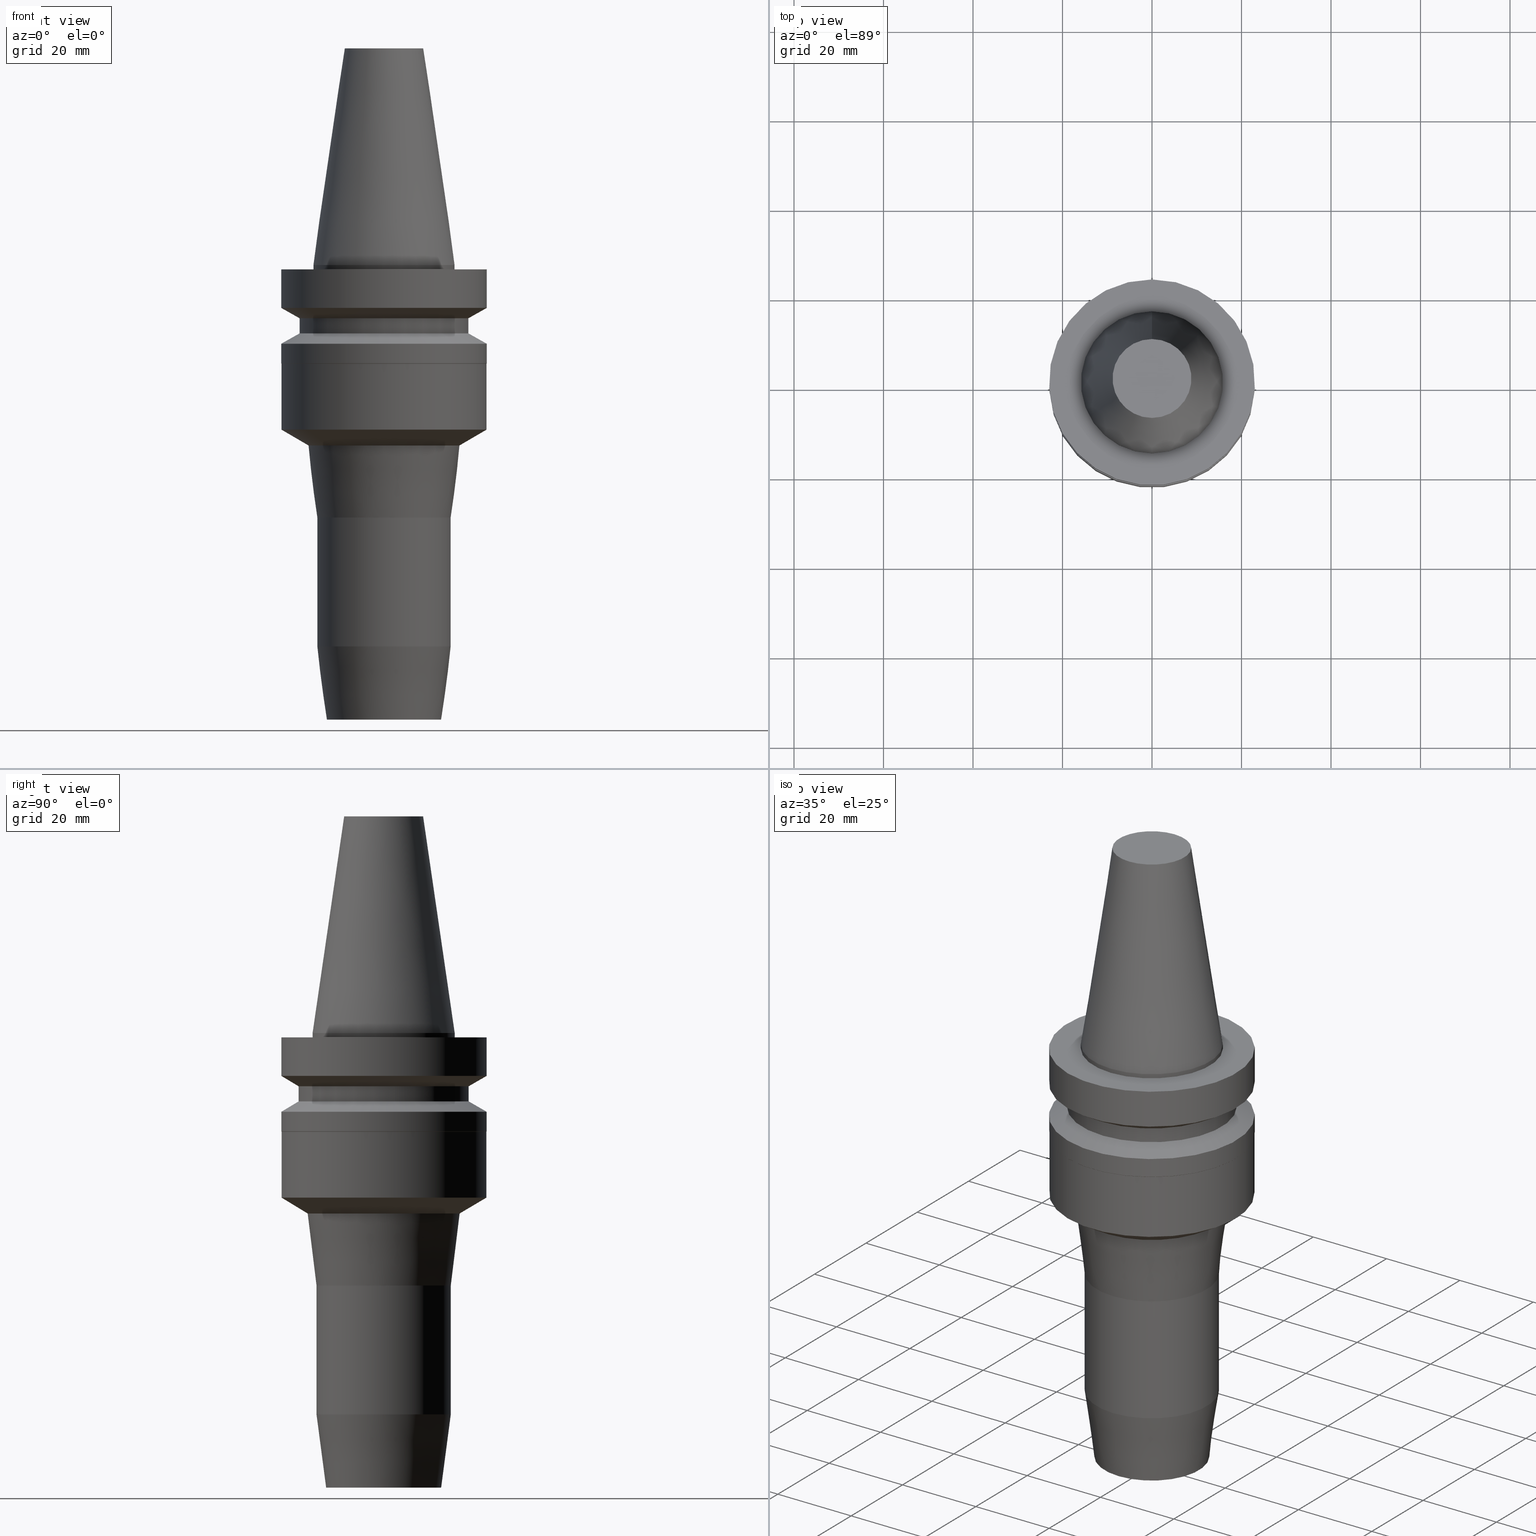
[diagram: canonical four-view strip — front | top / right | iso, engineering-drawing reading convention]
A machine part, canonical four-view strip (front | top / right | iso — engineering-drawing reading convention). The complete STEP part file that produces these views, byte-faithful:
ISO-10303-21;
HEADER;
FILE_DESCRIPTION((''),'1');
FILE_NAME('V:/90_\X2\53D65F9730C730FC30BF\X0\/00_\X2\6DE18DEF30C730FC30BF\X0\/ALL/BBT-BKUS\X2\FF76FF80FF9BFF78FF9E752852A05DE556F3\X0\201801/BBT30-HDC/BBT30-HDC.375-4.stp','2018-02-07T04:29:48',(''),(''),'Spatial Interop R21 SP3','Kubotek KeyCreator 2011 V10.0.2 (22737)',' ');
FILE_SCHEMA(('automotive_design'));
ENDSEC;
DATA;
#1=MECHANICAL_DESIGN_GEOMETRIC_PRESENTATION_REPRESENTATION(' ',(#10,#11,#12,#13,#14,#15,#16,#17,#18,#19,#20,#21,#22,#23,#24,#25,#26,#27,#28,#29,#30,#31,#32,#33,#34,#35,#36,#37,#38,#39,#40,#41),#6);
#2=PRODUCT_DEFINITION_CONTEXT('',#42,'design');
#3=APPLICATION_PROTOCOL_DEFINITION('INTERNATIONAL STANDARD','automotive_design',1994,#42);
#4=PRODUCT_CATEGORY_RELATIONSHIP('NONE','NONE',#43,#44);
#5=SHAPE_DEFINITION_REPRESENTATION(#45,#46);
#6= (GEOMETRIC_REPRESENTATION_CONTEXT(3)GLOBAL_UNCERTAINTY_ASSIGNED_CONTEXT((#49))GLOBAL_UNIT_ASSIGNED_CONTEXT((#51,#52,#53))REPRESENTATION_CONTEXT('NONE','WORKSPACE'));
#10=STYLED_ITEM('',(#55,#56),#57);
#11=STYLED_ITEM('',(#58,#59),#60);
#12=STYLED_ITEM('',(#61,#62),#63);
#13=STYLED_ITEM('',(#64,#65),#66);
#14=STYLED_ITEM('',(#67,#68),#69);
#15=STYLED_ITEM('',(#70),#71);
#16=STYLED_ITEM('',(#72,#73),#74);
#17=STYLED_ITEM('',(#75),#76);
#18=STYLED_ITEM('',(#77),#78);
#19=STYLED_ITEM('',(#79),#80);
#20=STYLED_ITEM('',(#81),#82);
#21=STYLED_ITEM('',(#83,#84),#85);
#22=STYLED_ITEM('',(#86,#87),#88);
#23=STYLED_ITEM('',(#89,#90),#91);
#24=STYLED_ITEM('',(#92),#93);
#25=STYLED_ITEM('',(#94),#95);
#26=STYLED_ITEM('',(#96,#97),#98);
#27=STYLED_ITEM('',(#99),#100);
#28=STYLED_ITEM('',(#101),#102);
#29=STYLED_ITEM('',(#103,#104),#105);
#30=STYLED_ITEM('',(#106),#107);
#31=STYLED_ITEM('',(#108,#109),#110);
#32=STYLED_ITEM('',(#111),#112);
#33=STYLED_ITEM('',(#113),#114);
#34=STYLED_ITEM('',(#115,#116),#117);
#35=STYLED_ITEM('',(#118),#119);
#36=STYLED_ITEM('',(#120,#121),#122);
#37=STYLED_ITEM('',(#123,#124),#125);
#38=STYLED_ITEM('',(#126,#127),#128);
#39=STYLED_ITEM('',(#129),#130);
#40=STYLED_ITEM('',(#131),#132);
#41=STYLED_ITEM('',(#133,#134),#135);
#42=APPLICATION_CONTEXT(' ');
#43=PRODUCT_CATEGORY('part','NONE');
#44=PRODUCT_RELATED_PRODUCT_CATEGORY('detail',' ',(#136));
#45=PRODUCT_DEFINITION_SHAPE('NONE','NONE',#137);
#46=ADVANCED_BREP_SHAPE_REPRESENTATION('Unnamed[1]',(#122,#138),#6);
#49=UNCERTAINTY_MEASURE_WITH_UNIT(LENGTH_MEASURE(1.0E-006),#51,'','');
#51= (CONVERSION_BASED_UNIT('MILLIMETRE',#141)LENGTH_UNIT()NAMED_UNIT(#144));
#52= (NAMED_UNIT(#146)PLANE_ANGLE_UNIT()SI_UNIT($,.RADIAN.));
#53= (NAMED_UNIT(#146)SOLID_ANGLE_UNIT()SI_UNIT($,.STERADIAN.));
#55=PRESENTATION_STYLE_ASSIGNMENT((#152));
#56=PRESENTATION_STYLE_ASSIGNMENT((#153));
#57=ADVANCED_FACE('Unnamed[1]',(#154,#155),#156,.T.);
#58=PRESENTATION_STYLE_ASSIGNMENT((#157));
#59=PRESENTATION_STYLE_ASSIGNMENT((#158));
#60=ADVANCED_FACE('Unnamed[1]',(#159,#160),#161,.T.);
#61=PRESENTATION_STYLE_ASSIGNMENT((#162));
#62=PRESENTATION_STYLE_ASSIGNMENT((#163));
#63=ADVANCED_FACE('Unnamed[1]',(#164,#165),#166,.T.);
#64=PRESENTATION_STYLE_ASSIGNMENT((#167));
#65=PRESENTATION_STYLE_ASSIGNMENT((#168));
#66=ADVANCED_FACE('Unnamed[1]',(#169),#170,.T.);
#67=PRESENTATION_STYLE_ASSIGNMENT((#171));
#68=PRESENTATION_STYLE_ASSIGNMENT((#172));
#69=ADVANCED_FACE('Unnamed[1]',(#173,#174),#175,.T.);
#70=PRESENTATION_STYLE_ASSIGNMENT((#176));
#71=EDGE_CURVE('Unnamed[1]',#177,#177,#178,.T.);
#72=PRESENTATION_STYLE_ASSIGNMENT((#179));
#73=PRESENTATION_STYLE_ASSIGNMENT((#180));
#74=ADVANCED_FACE('Unnamed[1]',(#181,#182),#183,.T.);
#75=PRESENTATION_STYLE_ASSIGNMENT((#184));
#76=EDGE_CURVE('Unnamed[1]',#185,#185,#186,.T.);
#77=PRESENTATION_STYLE_ASSIGNMENT((#187));
#78=EDGE_CURVE('Unnamed[1]',#188,#188,#189,.T.);
#79=PRESENTATION_STYLE_ASSIGNMENT((#190));
#80=EDGE_CURVE('Unnamed[1]',#191,#191,#192,.T.);
#81=PRESENTATION_STYLE_ASSIGNMENT((#193));
#82=EDGE_CURVE('Unnamed[1]',#194,#194,#195,.T.);
#83=PRESENTATION_STYLE_ASSIGNMENT((#196));
#84=PRESENTATION_STYLE_ASSIGNMENT((#197));
#85=ADVANCED_FACE('Unnamed[1]',(#198,#199),#200,.T.);
#86=PRESENTATION_STYLE_ASSIGNMENT((#201));
#87=PRESENTATION_STYLE_ASSIGNMENT((#202));
#88=ADVANCED_FACE('Unnamed[1]',(#203,#204),#205,.T.);
#89=PRESENTATION_STYLE_ASSIGNMENT((#206));
#90=PRESENTATION_STYLE_ASSIGNMENT((#207));
#91=ADVANCED_FACE('Unnamed[1]',(#208,#209),#210,.T.);
#92=PRESENTATION_STYLE_ASSIGNMENT((#211));
#93=EDGE_CURVE('Unnamed[1]',#212,#212,#213,.T.);
#94=PRESENTATION_STYLE_ASSIGNMENT((#214));
#95=EDGE_CURVE('Unnamed[1]',#215,#215,#216,.T.);
#96=PRESENTATION_STYLE_ASSIGNMENT((#217));
#97=PRESENTATION_STYLE_ASSIGNMENT((#218));
#98=ADVANCED_FACE('Unnamed[1]',(#219,#220),#221,.T.);
#99=PRESENTATION_STYLE_ASSIGNMENT((#222));
#100=EDGE_CURVE('Unnamed[1]',#223,#223,#224,.T.);
#101=PRESENTATION_STYLE_ASSIGNMENT((#225));
#102=EDGE_CURVE('Unnamed[1]',#226,#226,#227,.T.);
#103=PRESENTATION_STYLE_ASSIGNMENT((#228));
#104=PRESENTATION_STYLE_ASSIGNMENT((#229));
#105=ADVANCED_FACE('Unnamed[1]',(#230,#231),#232,.T.);
#106=PRESENTATION_STYLE_ASSIGNMENT((#233));
#107=EDGE_CURVE('Unnamed[1]',#234,#234,#235,.T.);
#108=PRESENTATION_STYLE_ASSIGNMENT((#236));
#109=PRESENTATION_STYLE_ASSIGNMENT((#237));
#110=ADVANCED_FACE('Unnamed[1]',(#238,#239),#240,.T.);
#111=PRESENTATION_STYLE_ASSIGNMENT((#241));
#112=EDGE_CURVE('Unnamed[1]',#242,#242,#243,.T.);
#113=PRESENTATION_STYLE_ASSIGNMENT((#244));
#114=EDGE_CURVE('Unnamed[1]',#245,#245,#246,.T.);
#115=PRESENTATION_STYLE_ASSIGNMENT((#247));
#116=PRESENTATION_STYLE_ASSIGNMENT((#248));
#117=ADVANCED_FACE('Unnamed[1]',(#249,#250),#251,.T.);
#118=PRESENTATION_STYLE_ASSIGNMENT((#252));
#119=EDGE_CURVE('Unnamed[1]',#253,#253,#254,.T.);
#120=PRESENTATION_STYLE_ASSIGNMENT((#255));
#121=PRESENTATION_STYLE_ASSIGNMENT((#256));
#122=MANIFOLD_SOLID_BREP('Unnamed[1]',#257);
#123=PRESENTATION_STYLE_ASSIGNMENT((#258));
#124=PRESENTATION_STYLE_ASSIGNMENT((#259));
#125=ADVANCED_FACE('Unnamed[1]',(#260,#261),#262,.T.);
#126=PRESENTATION_STYLE_ASSIGNMENT((#263));
#127=PRESENTATION_STYLE_ASSIGNMENT((#264));
#128=ADVANCED_FACE('Unnamed[1]',(#265,#266),#267,.T.);
#129=PRESENTATION_STYLE_ASSIGNMENT((#268));
#130=EDGE_CURVE('Unnamed[1]',#269,#269,#270,.T.);
#131=PRESENTATION_STYLE_ASSIGNMENT((#271));
#132=EDGE_CURVE('Unnamed[1]',#272,#272,#273,.T.);
#133=PRESENTATION_STYLE_ASSIGNMENT((#274));
#134=PRESENTATION_STYLE_ASSIGNMENT((#275));
#135=ADVANCED_FACE('Unnamed[1]',(#276),#277,.T.);
#136=PRODUCT('Unnamed[1]','Unnamed[1]','PART-Unnamed[1]-DESC',(#278));
#137=PRODUCT_DEFINITION('NONE','NONE',#279,#2);
#138=AXIS2_PLACEMENT_3D('',#280,#281,#282);
#141=LENGTH_MEASURE_WITH_UNIT(LENGTH_MEASURE(1.0),#283);
#144=DIMENSIONAL_EXPONENTS(1.0,0.0,0.0,0.0,0.0,0.0,0.0);
#146=DIMENSIONAL_EXPONENTS(0.0,0.0,0.0,0.0,0.0,0.0,0.0);
#152=SURFACE_STYLE_USAGE(.BOTH.,#284);
#153=CURVE_STYLE('',#285,POSITIVE_LENGTH_MEASURE(1000.0),#286);
#154=FACE_BOUND('',#287,.T.);
#155=FACE_BOUND('',#288,.T.);
#156=CYLINDRICAL_SURFACE('',#289,15.0);
#157=SURFACE_STYLE_USAGE(.BOTH.,#290);
#158=CURVE_STYLE('',#291,POSITIVE_LENGTH_MEASURE(1000.0),#292);
#159=FACE_BOUND('',#293,.T.);
#160=FACE_BOUND('',#294,.T.);
#161=CYLINDRICAL_SURFACE('',#295,23.0);
#162=SURFACE_STYLE_USAGE(.BOTH.,#296);
#163=CURVE_STYLE('',#297,POSITIVE_LENGTH_MEASURE(1000.0),#298);
#164=FACE_BOUND('',#299,.T.);
#165=FACE_BOUND('',#300,.T.);
#166=CONICAL_SURFACE('',#301,21.0,1.04719755058881);
#167=SURFACE_STYLE_USAGE(.BOTH.,#302);
#168=CURVE_STYLE('',#303,POSITIVE_LENGTH_MEASURE(1000.0),#304);
#169=FACE_OUTER_BOUND('',#305,.T.);
#170=PLANE('',#306);
#171=SURFACE_STYLE_USAGE(.BOTH.,#307);
#172=CURVE_STYLE('',#308,POSITIVE_LENGTH_MEASURE(1000.0),#309);
#173=FACE_BOUND('',#310,.T.);
#174=FACE_BOUND('',#311,.T.);
#175=CYLINDRICAL_SURFACE('',#312,19.0);
#176=CURVE_STYLE('',#313,POSITIVE_LENGTH_MEASURE(1000.0),#314);
#177=VERTEX_POINT('',#315);
#178=CIRCLE('',#316,19.0);
#179=SURFACE_STYLE_USAGE(.BOTH.,#317);
#180=CURVE_STYLE('',#318,POSITIVE_LENGTH_MEASURE(1000.0),#319);
#181=FACE_BOUND('',#320,.T.);
#182=FACE_BOUND('',#321,.T.);
#183=CONICAL_SURFACE('',#322,22.9749999999999,0.785398163893656);
#184=CURVE_STYLE('',#323,POSITIVE_LENGTH_MEASURE(1000.0),#324);
#185=VERTEX_POINT('',#325);
#186=CIRCLE('',#326,22.9499999999998);
#187=CURVE_STYLE('',#327,POSITIVE_LENGTH_MEASURE(1000.0),#328);
#188=VERTEX_POINT('',#329);
#189=CIRCLE('',#330,15.875);
#190=CURVE_STYLE('',#331,POSITIVE_LENGTH_MEASURE(1000.0),#332);
#191=VERTEX_POINT('',#333);
#192=CIRCLE('',#334,23.0);
#193=CURVE_STYLE('',#335,POSITIVE_LENGTH_MEASURE(1000.0),#336);
#194=VERTEX_POINT('',#337);
#195=CIRCLE('',#338,14.9999999999985);
#196=SURFACE_STYLE_USAGE(.BOTH.,#339);
#197=CURVE_STYLE('',#340,POSITIVE_LENGTH_MEASURE(1000.0),#341);
#198=FACE_BOUND('',#342,.T.);
#199=FACE_BOUND('',#343,.T.);
#200=CYLINDRICAL_SURFACE('',#344,15.875);
#201=SURFACE_STYLE_USAGE(.BOTH.,#345);
#202=CURVE_STYLE('',#346,POSITIVE_LENGTH_MEASURE(1000.0),#347);
#203=FACE_BOUND('',#348,.T.);
#204=FACE_BOUND('',#349,.T.);
#205=CONICAL_SURFACE('',#350,15.9870273656567,0.122173047639587);
#206=SURFACE_STYLE_USAGE(.BOTH.,#351);
#207=CURVE_STYLE('',#352,POSITIVE_LENGTH_MEASURE(1000.0),#353);
#208=FACE_BOUND('',#354,.T.);
#209=FACE_BOUND('',#355,.T.);
#210=CONICAL_SURFACE('',#356,13.9226826777112,0.130899693901768);
#211=CURVE_STYLE('',#357,POSITIVE_LENGTH_MEASURE(1000.0),#358);
#212=VERTEX_POINT('',#359);
#213=CIRCLE('',#360,23.0);
#214=CURVE_STYLE('',#361,POSITIVE_LENGTH_MEASURE(1000.0),#362);
#215=VERTEX_POINT('',#363);
#216=CIRCLE('',#364,23.0);
#217=SURFACE_STYLE_USAGE(.BOTH.,#365);
#218=CURVE_STYLE('',#366,POSITIVE_LENGTH_MEASURE(1000.0),#367);
#219=FACE_OUTER_BOUND('',#368,.T.);
#220=FACE_BOUND('',#369,.T.);
#221=PLANE('',#370);
#222=CURVE_STYLE('',#371,POSITIVE_LENGTH_MEASURE(1000.0),#372);
#223=VERTEX_POINT('',#373);
#224=CIRCLE('',#374,15.875);
#225=CURVE_STYLE('',#375,POSITIVE_LENGTH_MEASURE(1000.0),#376);
#226=VERTEX_POINT('',#377);
#227=CIRCLE('',#378,22.95);
#228=SURFACE_STYLE_USAGE(.BOTH.,#379);
#229=CURVE_STYLE('',#380,POSITIVE_LENGTH_MEASURE(1000.0),#381);
#230=FACE_BOUND('',#382,.T.);
#231=FACE_BOUND('',#383,.T.);
#232=CONICAL_SURFACE('',#384,19.962027365656,1.03555478209556);
#233=CURVE_STYLE('',#385,POSITIVE_LENGTH_MEASURE(1000.0),#386);
#234=VERTEX_POINT('',#387);
#235=CIRCLE('',#388,15.0000000000014);
#236=SURFACE_STYLE_USAGE(.BOTH.,#389);
#237=CURVE_STYLE('',#390,POSITIVE_LENGTH_MEASURE(1000.0),#391);
#238=FACE_BOUND('',#392,.T.);
#239=FACE_BOUND('',#393,.T.);
#240=CYLINDRICAL_SURFACE('',#394,23.0);
#241=CURVE_STYLE('',#395,POSITIVE_LENGTH_MEASURE(1000.0),#396);
#242=VERTEX_POINT('',#397);
#243=CIRCLE('',#398,19.0);
#244=CURVE_STYLE('',#399,POSITIVE_LENGTH_MEASURE(1000.0),#400);
#245=VERTEX_POINT('',#401);
#246=CIRCLE('',#402,12.8453653554239);
#247=SURFACE_STYLE_USAGE(.BOTH.,#403);
#248=CURVE_STYLE('',#404,POSITIVE_LENGTH_MEASURE(1000.0),#405);
#249=FACE_BOUND('',#406,.T.);
#250=FACE_BOUND('',#407,.T.);
#251=CYLINDRICAL_SURFACE('',#408,22.9499999999999);
#252=CURVE_STYLE('',#409,POSITIVE_LENGTH_MEASURE(1000.0),#410);
#253=VERTEX_POINT('',#411);
#254=CIRCLE('',#412,23.0);
#255=SURFACE_STYLE_USAGE(.BOTH.,#413);
#256=CURVE_STYLE('',#414,POSITIVE_LENGTH_MEASURE(1000.0),#415);
#257=CLOSED_SHELL('',(#135,#128,#85,#98,#60,#63,#69,#125,#110,#74,#117,#105,#88,#57,#91,#66));
#258=SURFACE_STYLE_USAGE(.BOTH.,#416);
#259=CURVE_STYLE('',#417,POSITIVE_LENGTH_MEASURE(1000.0),#418);
#260=FACE_BOUND('',#419,.T.);
#261=FACE_BOUND('',#420,.T.);
#262=CONICAL_SURFACE('',#421,21.0,1.04719755058882);
#263=SURFACE_STYLE_USAGE(.BOTH.,#422);
#264=CURVE_STYLE('',#423,POSITIVE_LENGTH_MEASURE(1000.0),#424);
#265=FACE_BOUND('',#425,.T.);
#266=FACE_BOUND('',#426,.T.);
#267=CONICAL_SURFACE('',#427,12.3457500009933,0.144815870013618);
#268=CURVE_STYLE('',#428,POSITIVE_LENGTH_MEASURE(1000.0),#429);
#269=VERTEX_POINT('',#430);
#270=CIRCLE('',#431,8.81650000198669);
#271=CURVE_STYLE('',#432,POSITIVE_LENGTH_MEASURE(1000.0),#433);
#272=VERTEX_POINT('',#434);
#273=CIRCLE('',#435,16.9740547313119);
#274=SURFACE_STYLE_USAGE(.BOTH.,#436);
#275=CURVE_STYLE('',#437,POSITIVE_LENGTH_MEASURE(1000.0),#438);
#276=FACE_OUTER_BOUND('',#439,.T.);
#277=PLANE('',#440);
#278=PRODUCT_CONTEXT('',#42,'mechanical');
#279=PRODUCT_DEFINITION_FORMATION_WITH_SPECIFIED_SOURCE(' ','NONE',#136,.NOT_KNOWN.);
#280=CARTESIAN_POINT('',(0.0,0.0,0.0));
#281=DIRECTION('',(0.0,0.0,1.0));
#282=DIRECTION('',(1.0,0.0,0.0));
#283= (NAMED_UNIT(#144)LENGTH_UNIT()SI_UNIT(.MILLI.,.METRE.));
#284=SURFACE_SIDE_STYLE('',(#442));
#285=DRAUGHTING_PRE_DEFINED_CURVE_FONT('continuous');
#286=COLOUR_RGB('',0.0,1.0,0.0);
#287=EDGE_LOOP('',(#443));
#288=EDGE_LOOP('',(#444));
#289=AXIS2_PLACEMENT_3D('',#445,#446,#447);
#290=SURFACE_SIDE_STYLE('',(#448));
#291=DRAUGHTING_PRE_DEFINED_CURVE_FONT('continuous');
#292=COLOUR_RGB('',0.0,1.0,0.0);
#293=EDGE_LOOP('',(#449));
#294=EDGE_LOOP('',(#450));
#295=AXIS2_PLACEMENT_3D('',#451,#452,#453);
#296=SURFACE_SIDE_STYLE('',(#454));
#297=DRAUGHTING_PRE_DEFINED_CURVE_FONT('continuous');
#298=COLOUR_RGB('',0.0,1.0,0.0);
#299=EDGE_LOOP('',(#455));
#300=EDGE_LOOP('',(#456));
#301=AXIS2_PLACEMENT_3D('',#457,#458,#459);
#302=SURFACE_SIDE_STYLE('',(#460));
#303=DRAUGHTING_PRE_DEFINED_CURVE_FONT('continuous');
#304=COLOUR_RGB('',0.0,1.0,0.0);
#305=EDGE_LOOP('',(#461));
#306=AXIS2_PLACEMENT_3D('',#462,#463,#464);
#307=SURFACE_SIDE_STYLE('',(#465));
#308=DRAUGHTING_PRE_DEFINED_CURVE_FONT('continuous');
#309=COLOUR_RGB('',0.0,1.0,0.0);
#310=EDGE_LOOP('',(#466));
#311=EDGE_LOOP('',(#467));
#312=AXIS2_PLACEMENT_3D('',#468,#469,#470);
#313=DRAUGHTING_PRE_DEFINED_CURVE_FONT('continuous');
#314=COLOUR_RGB('',0.0,1.0,0.0);
#315=CARTESIAN_POINT('',(9.36279151221199E-016,19.0,-15.29059892));
#316=AXIS2_PLACEMENT_3D('',#471,#472,#473);
#317=SURFACE_SIDE_STYLE('',(#474));
#318=DRAUGHTING_PRE_DEFINED_CURVE_FONT('continuous');
#319=COLOUR_RGB('',0.0,1.0,0.0);
#320=EDGE_LOOP('',(#475));
#321=EDGE_LOOP('',(#476));
#322=AXIS2_PLACEMENT_3D('',#477,#478,#479);
#323=DRAUGHTING_PRE_DEFINED_CURVE_FONT('continuous');
#324=COLOUR_RGB('',0.0,1.0,0.0);
#325=CARTESIAN_POINT('',(1.35017309605716E-015,22.9499999999998,-22.0499999999543));
#326=AXIS2_PLACEMENT_3D('',#480,#481,#482);
#327=DRAUGHTING_PRE_DEFINED_CURVE_FONT('continuous');
#328=COLOUR_RGB('',0.0,1.0,0.0);
#329=CARTESIAN_POINT('',(-1.95674482349743E-031,15.875,1.94412679364642E-015));
#330=AXIS2_PLACEMENT_3D('',#483,#484,#485);
#331=DRAUGHTING_PRE_DEFINED_CURVE_FONT('continuous');
#332=COLOUR_RGB('',0.0,1.0,0.0);
#333=CARTESIAN_POINT('',(1.07768918324967E-015,23.0,-17.6));
#334=AXIS2_PLACEMENT_3D('',#486,#487,#488);
#335=DRAUGHTING_PRE_DEFINED_CURVE_FONT('continuous');
#336=COLOUR_RGB('',0.0,1.0,0.0);
#337=CARTESIAN_POINT('',(5.2190726737866E-015,14.9999999999985,-85.2339250373302));
#338=AXIS2_PLACEMENT_3D('',#489,#490,#491);
#339=SURFACE_SIDE_STYLE('',(#492));
#340=DRAUGHTING_PRE_DEFINED_CURVE_FONT('continuous');
#341=COLOUR_RGB('',0.0,1.0,0.0);
#342=EDGE_LOOP('',(#493));
#343=EDGE_LOOP('',(#494));
#344=AXIS2_PLACEMENT_3D('',#495,#496,#497);
#345=SURFACE_SIDE_STYLE('',(#498));
#346=DRAUGHTING_PRE_DEFINED_CURVE_FONT('continuous');
#347=COLOUR_RGB('',0.0,1.0,0.0);
#348=EDGE_LOOP('',(#499));
#349=EDGE_LOOP('',(#500));
#350=AXIS2_PLACEMENT_3D('',#501,#502,#503);
#351=SURFACE_SIDE_STYLE('',(#504));
#352=DRAUGHTING_PRE_DEFINED_CURVE_FONT('continuous');
#353=COLOUR_RGB('',0.0,1.0,0.0);
#354=EDGE_LOOP('',(#505));
#355=EDGE_LOOP('',(#506));
#356=AXIS2_PLACEMENT_3D('',#507,#508,#509);
#357=DRAUGHTING_PRE_DEFINED_CURVE_FONT('continuous');
#358=COLOUR_RGB('',0.0,1.0,0.0);
#359=CARTESIAN_POINT('',(1.34711147906232E-015,23.0,-22.0000000000037));
#360=AXIS2_PLACEMENT_3D('',#510,#511,#512);
#361=DRAUGHTING_PRE_DEFINED_CURVE_FONT('continuous');
#362=COLOUR_RGB('',0.0,1.0,0.0);
#363=CARTESIAN_POINT('',(6.12323399573674E-017,23.0,-0.999999999999997));
#364=AXIS2_PLACEMENT_3D('',#513,#514,#515);
#365=SURFACE_SIDE_STYLE('',(#516));
#366=DRAUGHTING_PRE_DEFINED_CURVE_FONT('continuous');
#367=COLOUR_RGB('',0.0,1.0,0.0);
#368=EDGE_LOOP('',(#517));
#369=EDGE_LOOP('',(#518));
#370=AXIS2_PLACEMENT_3D('',#519,#520,#521);
#371=DRAUGHTING_PRE_DEFINED_CURVE_FONT('continuous');
#372=COLOUR_RGB('',0.0,1.0,0.0);
#373=CARTESIAN_POINT('',(6.12323399573675E-017,15.875,-0.999999999999998));
#374=AXIS2_PLACEMENT_3D('',#522,#523,#524);
#375=DRAUGHTING_PRE_DEFINED_CURVE_FONT('continuous');
#376=COLOUR_RGB('',0.0,1.0,0.0);
#377=CARTESIAN_POINT('',(2.25335011043113E-015,22.95,-36.8));
#378=AXIS2_PLACEMENT_3D('',#525,#526,#527);
#379=SURFACE_SIDE_STYLE('',(#528));
#380=DRAUGHTING_PRE_DEFINED_CURVE_FONT('continuous');
#381=COLOUR_RGB('',0.0,1.0,0.0);
#382=EDGE_LOOP('',(#529));
#383=EDGE_LOOP('',(#530));
#384=AXIS2_PLACEMENT_3D('',#531,#532,#533);
#385=DRAUGHTING_PRE_DEFINED_CURVE_FONT('continuous');
#386=COLOUR_RGB('',0.0,1.0,0.0);
#387=CARTESIAN_POINT('',(3.45478985273467E-015,15.0000000000014,-56.4210000000005));
#388=AXIS2_PLACEMENT_3D('',#534,#535,#536);
#389=SURFACE_SIDE_STYLE('',(#537));
#390=DRAUGHTING_PRE_DEFINED_CURVE_FONT('continuous');
#391=COLOUR_RGB('',0.0,1.0,0.0);
#392=EDGE_LOOP('',(#538));
#393=EDGE_LOOP('',(#539));
#394=AXIS2_PLACEMENT_3D('',#540,#541,#542);
#395=DRAUGHTING_PRE_DEFINED_CURVE_FONT('continuous');
#396=COLOUR_RGB('',0.0,1.0,0.0);
#397=CARTESIAN_POINT('',(7.29240495619202E-016,19.0,-11.90940108));
#398=AXIS2_PLACEMENT_3D('',#543,#544,#545);
#399=DRAUGHTING_PRE_DEFINED_CURVE_FONT('continuous');
#400=COLOUR_RGB('',0.0,1.0,0.0);
#401=CARTESIAN_POINT('',(6.22120573966855E-015,12.845365355424,-101.6));
#402=AXIS2_PLACEMENT_3D('',#546,#547,#548);
#403=SURFACE_SIDE_STYLE('',(#549));
#404=DRAUGHTING_PRE_DEFINED_CURVE_FONT('continuous');
#405=COLOUR_RGB('',0.0,1.0,0.0);
#406=EDGE_LOOP('',(#550));
#407=EDGE_LOOP('',(#551));
#408=AXIS2_PLACEMENT_3D('',#552,#553,#554);
#409=DRAUGHTING_PRE_DEFINED_CURVE_FONT('continuous');
#410=COLOUR_RGB('',0.0,1.0,0.0);
#411=CARTESIAN_POINT('',(5.87830463590729E-016,23.0,-9.59999999999999));
#412=AXIS2_PLACEMENT_3D('',#555,#556,#557);
#413=SURFACE_SIDE_STYLE('',(#558));
#414=DRAUGHTING_PRE_DEFINED_CURVE_FONT('continuous');
#415=COLOUR_RGB('',0.0,1.0,0.0);
#416=SURFACE_SIDE_STYLE('',(#559));
#417=DRAUGHTING_PRE_DEFINED_CURVE_FONT('continuous');
#418=COLOUR_RGB('',0.0,1.0,0.0);
#419=EDGE_LOOP('',(#560));
#420=EDGE_LOOP('',(#561));
#421=AXIS2_PLACEMENT_3D('',#562,#563,#564);
#422=SURFACE_SIDE_STYLE('',(#565));
#423=DRAUGHTING_PRE_DEFINED_CURVE_FONT('continuous');
#424=COLOUR_RGB('',0.0,1.0,0.0);
#425=EDGE_LOOP('',(#566));
#426=EDGE_LOOP('',(#567));
#427=AXIS2_PLACEMENT_3D('',#568,#569,#570);
#428=DRAUGHTING_PRE_DEFINED_CURVE_FONT('continuous');
#429=COLOUR_RGB('',0.0,1.0,0.0);
#430=CARTESIAN_POINT('',(-2.96364525393659E-015,8.81650000198669,48.4));
#431=AXIS2_PLACEMENT_3D('',#571,#572,#573);
#432=DRAUGHTING_PRE_DEFINED_CURVE_FONT('continuous');
#433=COLOUR_RGB('',0.0,1.0,0.0);
#434=CARTESIAN_POINT('',(2.47033391207569E-015,16.9740547313119,-40.3436144004236));
#435=AXIS2_PLACEMENT_3D('',#574,#575,#576);
#436=SURFACE_SIDE_STYLE('',(#577));
#437=DRAUGHTING_PRE_DEFINED_CURVE_FONT('continuous');
#438=COLOUR_RGB('',0.0,1.0,0.0);
#439=EDGE_LOOP('',(#578));
#440=AXIS2_PLACEMENT_3D('',#579,#580,#581);
#442=SURFACE_STYLE_FILL_AREA(#582);
#443=ORIENTED_EDGE('',*,*,#82,.F.);
#444=ORIENTED_EDGE('',*,*,#107,.T.);
#445=CARTESIAN_POINT('',(4.33693126326063E-015,8.67386252652127E-015,-70.8274625186654));
#446=DIRECTION('',(6.12323399573677E-017,1.22464679914735E-016,-1.0));
#447=DIRECTION('',(-1.23259516440783E-032,1.0,1.22464679914735E-016));
#448=SURFACE_STYLE_FILL_AREA(#583);
#449=ORIENTED_EDGE('',*,*,#119,.F.);
#450=ORIENTED_EDGE('',*,*,#95,.T.);
#451=CARTESIAN_POINT('',(3.24531401774048E-016,6.49062803548097E-016,-5.3));
#452=DIRECTION('',(6.12323399573677E-017,1.22464679914735E-016,-1.0));
#453=DIRECTION('',(-1.23259516440783E-032,1.0,1.22464679914735E-016));
#454=SURFACE_STYLE_FILL_AREA(#584);
#455=ORIENTED_EDGE('',*,*,#112,.F.);
#456=ORIENTED_EDGE('',*,*,#119,.T.);
#457=CARTESIAN_POINT('',(6.58535479604966E-016,1.31707095920993E-015,-10.75470054));
#458=DIRECTION('',(-6.12323399573677E-017,-1.22464679914735E-016,1.0));
#459=DIRECTION('',(-1.23259516440783E-032,1.0,1.22464679914735E-016));
#460=SURFACE_STYLE_FILL_AREA(#585);
#461=ORIENTED_EDGE('',*,*,#114,.T.);
#462=CARTESIAN_POINT('',(6.22120573966855E-015,6.42268267771198,-101.6));
#463=DIRECTION('',(6.12323399573677E-017,1.22464679914735E-016,-1.0));
#464=DIRECTION('',(-1.23259516440783E-032,1.0,1.22464679914735E-016));
#465=SURFACE_STYLE_FILL_AREA(#586);
#466=ORIENTED_EDGE('',*,*,#71,.F.);
#467=ORIENTED_EDGE('',*,*,#112,.T.);
#468=CARTESIAN_POINT('',(8.32759823420201E-016,1.6655196468404E-015,-13.6));
#469=DIRECTION('',(6.12323399573677E-017,1.22464679914735E-016,-1.0));
#470=DIRECTION('',(-1.23259516440783E-032,1.0,1.22464679914735E-016));
#471=CARTESIAN_POINT('',(9.36279151221199E-016,1.8725583024424E-015,-15.29059892));
#472=DIRECTION('',(6.12323399573677E-017,1.22464679914735E-016,-1.0));
#473=DIRECTION('',(-1.23259516440783E-032,1.0,1.22464679914735E-016));
#474=SURFACE_STYLE_FILL_AREA(#587);
#475=ORIENTED_EDGE('',*,*,#76,.F.);
#476=ORIENTED_EDGE('',*,*,#93,.T.);
#477=CARTESIAN_POINT('',(1.34864228755974E-015,2.69728457511947E-015,-22.024999999979));
#478=DIRECTION('',(-6.12323399573677E-017,-1.22464679914735E-016,1.0));
#479=DIRECTION('',(-1.23259516440783E-032,1.0,1.22464679914735E-016));
#480=CARTESIAN_POINT('',(1.35017309605716E-015,2.70034619211431E-015,-22.0499999999543));
#481=DIRECTION('',(6.12323399573677E-017,1.22464679914735E-016,-1.0));
#482=DIRECTION('',(-1.23259516440783E-032,1.0,1.22464679914735E-016));
#483=CARTESIAN_POINT('',(0.0,0.0,0.0));
#484=DIRECTION('',(6.12323399573677E-017,1.22464679914735E-016,-1.0));
#485=DIRECTION('',(-1.23259516440783E-032,1.0,1.22464679914735E-016));
#486=CARTESIAN_POINT('',(1.07768918324967E-015,2.15537836649934E-015,-17.6));
#487=DIRECTION('',(6.12323399573677E-017,1.22464679914735E-016,-1.0));
#488=DIRECTION('',(-1.23259516440783E-032,1.0,1.22464679914735E-016));
#489=CARTESIAN_POINT('',(5.2190726737866E-015,1.04381453475732E-014,-85.2339250373302));
#490=DIRECTION('',(6.12323399573677E-017,1.22464679914735E-016,-1.0));
#491=DIRECTION('',(-1.23259516440783E-032,1.0,1.22464679914735E-016));
#492=SURFACE_STYLE_FILL_AREA(#588);
#493=ORIENTED_EDGE('',*,*,#100,.F.);
#494=ORIENTED_EDGE('',*,*,#78,.T.);
#495=CARTESIAN_POINT('',(3.06161699786838E-017,6.12323399573676E-017,-0.5));
#496=DIRECTION('',(6.12323399573677E-017,1.22464679914735E-016,-1.0));
#497=DIRECTION('',(-1.23259516440783E-032,1.0,1.22464679914735E-016));
#498=SURFACE_STYLE_FILL_AREA(#589);
#499=ORIENTED_EDGE('',*,*,#107,.F.);
#500=ORIENTED_EDGE('',*,*,#132,.T.);
#501=CARTESIAN_POINT('',(2.96256188240518E-015,5.92512376481036E-015,-48.382307200212));
#502=DIRECTION('',(-6.12323399573677E-017,-1.22464679914735E-016,1.0));
#503=DIRECTION('',(-1.23259516440783E-032,1.0,1.22464679914735E-016));
#504=SURFACE_STYLE_FILL_AREA(#590);
#505=ORIENTED_EDGE('',*,*,#114,.F.);
#506=ORIENTED_EDGE('',*,*,#82,.T.);
#507=CARTESIAN_POINT('',(5.72013920672758E-015,1.14402784134551E-014,-93.4169625186651));
#508=DIRECTION('',(-6.12323399573677E-017,-1.22464679914735E-016,1.0));
#509=DIRECTION('',(-1.23259516440783E-032,1.0,1.22464679914735E-016));
#510=CARTESIAN_POINT('',(1.34711147906232E-015,2.69422295812463E-015,-22.0000000000037));
#511=DIRECTION('',(6.12323399573677E-017,1.22464679914735E-016,-1.0));
#512=DIRECTION('',(-1.23259516440783E-032,1.0,1.22464679914735E-016));
#513=CARTESIAN_POINT('',(6.12323399573677E-017,1.22464679914735E-016,-1.0));
#514=DIRECTION('',(6.12323399573677E-017,1.22464679914735E-016,-1.0));
#515=DIRECTION('',(-1.23259516440783E-032,1.0,1.22464679914735E-016));
#516=SURFACE_STYLE_FILL_AREA(#591);
#517=ORIENTED_EDGE('',*,*,#95,.F.);
#518=ORIENTED_EDGE('',*,*,#100,.T.);
#519=CARTESIAN_POINT('',(6.12323399573674E-017,19.4375,-0.999999999999998));
#520=DIRECTION('',(-6.12323399573677E-017,-1.22464679914735E-016,1.0));
#521=DIRECTION('',(1.23259516440783E-032,-1.0,-1.22464679914735E-016));
#522=CARTESIAN_POINT('',(6.12323399573677E-017,1.22464679914735E-016,-1.0));
#523=DIRECTION('',(6.12323399573677E-017,1.22464679914735E-016,-1.0));
#524=DIRECTION('',(-1.23259516440783E-032,1.0,1.22464679914735E-016));
#525=CARTESIAN_POINT('',(2.25335011043113E-015,4.50670022086226E-015,-36.8));
#526=DIRECTION('',(6.12323399573677E-017,1.22464679914735E-016,-1.0));
#527=DIRECTION('',(-1.23259516440783E-032,1.0,1.22464679914735E-016));
#528=SURFACE_STYLE_FILL_AREA(#592);
#529=ORIENTED_EDGE('',*,*,#132,.F.);
#530=ORIENTED_EDGE('',*,*,#102,.T.);
#531=CARTESIAN_POINT('',(2.36184201125341E-015,4.72368402250682E-015,-38.5718072002118));
#532=DIRECTION('',(-6.12323399573677E-017,-1.22464679914735E-016,1.0));
#533=DIRECTION('',(-1.23259516440783E-032,1.0,1.22464679914735E-016));
#534=CARTESIAN_POINT('',(3.45478985273467E-015,6.90957970546934E-015,-56.4210000000005));
#535=DIRECTION('',(6.12323399573677E-017,1.22464679914735E-016,-1.0));
#536=DIRECTION('',(-1.23259516440783E-032,1.0,1.22464679914735E-016));
#537=SURFACE_STYLE_FILL_AREA(#593);
#538=ORIENTED_EDGE('',*,*,#93,.F.);
#539=ORIENTED_EDGE('',*,*,#80,.T.);
#540=CARTESIAN_POINT('',(1.21240033115599E-015,2.42480066231199E-015,-19.8000000000019));
#541=DIRECTION('',(6.12323399573677E-017,1.22464679914735E-016,-1.0));
#542=DIRECTION('',(-1.23259516440783E-032,1.0,1.22464679914735E-016));
#543=CARTESIAN_POINT('',(7.29240495619202E-016,1.4584809912384E-015,-11.90940108));
#544=DIRECTION('',(6.12323399573677E-017,1.22464679914735E-016,-1.0));
#545=DIRECTION('',(-1.23259516440783E-032,1.0,1.22464679914735E-016));
#546=CARTESIAN_POINT('',(6.22120573966855E-015,1.24424114793371E-014,-101.6));
#547=DIRECTION('',(6.12323399573676E-017,1.22464679914735E-016,-1.0));
#548=DIRECTION('',(-1.23259516440783E-032,1.0,1.22464679914735E-016));
#549=SURFACE_STYLE_FILL_AREA(#594);
#550=ORIENTED_EDGE('',*,*,#102,.F.);
#551=ORIENTED_EDGE('',*,*,#76,.T.);
#552=CARTESIAN_POINT('',(1.80176160324414E-015,3.60352320648829E-015,-29.4249999999771));
#553=DIRECTION('',(6.12323399573677E-017,1.22464679914735E-016,-1.0));
#554=DIRECTION('',(-1.23259516440783E-032,1.0,1.22464679914735E-016));
#555=CARTESIAN_POINT('',(5.87830463590729E-016,1.17566092718146E-015,-9.59999999999999));
#556=DIRECTION('',(6.12323399573677E-017,1.22464679914735E-016,-1.0));
#557=DIRECTION('',(-1.23259516440783E-032,1.0,1.22464679914735E-016));
#558=SURFACE_STYLE_FILL_AREA(#595);
#559=SURFACE_STYLE_FILL_AREA(#596);
#560=ORIENTED_EDGE('',*,*,#80,.F.);
#561=ORIENTED_EDGE('',*,*,#71,.T.);
#562=CARTESIAN_POINT('',(1.00698416723543E-015,2.01396833447087E-015,-16.44529946));
#563=DIRECTION('',(6.12323399573677E-017,1.22464679914735E-016,-1.0));
#564=DIRECTION('',(-1.23259516440783E-032,1.0,1.22464679914735E-016));
#565=SURFACE_STYLE_FILL_AREA(#597);
#566=ORIENTED_EDGE('',*,*,#78,.F.);
#567=ORIENTED_EDGE('',*,*,#130,.T.);
#568=CARTESIAN_POINT('',(-1.4818226269683E-015,-2.96364525393659E-015,24.2));
#569=DIRECTION('',(6.12323399573677E-017,1.22464679914735E-016,-1.0));
#570=DIRECTION('',(-1.23259516440783E-032,1.0,1.22464679914735E-016));
#571=CARTESIAN_POINT('',(-2.96364525393659E-015,-5.92729050787319E-015,48.4));
#572=DIRECTION('',(6.12323399573677E-017,1.22464679914735E-016,-1.0));
#573=DIRECTION('',(-1.23259516440783E-032,1.0,1.22464679914735E-016));
#574=CARTESIAN_POINT('',(2.47033391207569E-015,4.94066782415138E-015,-40.3436144004236));
#575=DIRECTION('',(6.12323399573677E-017,1.22464679914735E-016,-1.0));
#576=DIRECTION('',(-1.23259516440783E-032,1.0,1.22464679914735E-016));
#577=SURFACE_STYLE_FILL_AREA(#598);
#578=ORIENTED_EDGE('',*,*,#130,.F.);
#579=CARTESIAN_POINT('',(-2.96364525393659E-015,4.40825000099334,48.4));
#580=DIRECTION('',(-6.12323399573677E-017,-1.22464679914735E-016,1.0));
#581=DIRECTION('',(1.23259516440783E-032,-1.0,-1.22464679914735E-016));
#582=FILL_AREA_STYLE('',(#599));
#583=FILL_AREA_STYLE('',(#600));
#584=FILL_AREA_STYLE('',(#601));
#585=FILL_AREA_STYLE('',(#602));
#586=FILL_AREA_STYLE('',(#603));
#587=FILL_AREA_STYLE('',(#604));
#588=FILL_AREA_STYLE('',(#605));
#589=FILL_AREA_STYLE('',(#606));
#590=FILL_AREA_STYLE('',(#607));
#591=FILL_AREA_STYLE('',(#608));
#592=FILL_AREA_STYLE('',(#609));
#593=FILL_AREA_STYLE('',(#610));
#594=FILL_AREA_STYLE('',(#611));
#595=FILL_AREA_STYLE('',(#612));
#596=FILL_AREA_STYLE('',(#613));
#597=FILL_AREA_STYLE('',(#614));
#598=FILL_AREA_STYLE('',(#615));
#599=FILL_AREA_STYLE_COLOUR('',#616);
#600=FILL_AREA_STYLE_COLOUR('',#617);
#601=FILL_AREA_STYLE_COLOUR('',#618);
#602=FILL_AREA_STYLE_COLOUR('',#619);
#603=FILL_AREA_STYLE_COLOUR('',#620);
#604=FILL_AREA_STYLE_COLOUR('',#621);
#605=FILL_AREA_STYLE_COLOUR('',#622);
#606=FILL_AREA_STYLE_COLOUR('',#623);
#607=FILL_AREA_STYLE_COLOUR('',#624);
#608=FILL_AREA_STYLE_COLOUR('',#625);
#609=FILL_AREA_STYLE_COLOUR('',#626);
#610=FILL_AREA_STYLE_COLOUR('',#627);
#611=FILL_AREA_STYLE_COLOUR('',#628);
#612=FILL_AREA_STYLE_COLOUR('',#629);
#613=FILL_AREA_STYLE_COLOUR('',#630);
#614=FILL_AREA_STYLE_COLOUR('',#631);
#615=FILL_AREA_STYLE_COLOUR('',#632);
#616=COLOUR_RGB('',0.0,1.0,0.0);
#617=COLOUR_RGB('',0.0,1.0,0.0);
#618=COLOUR_RGB('',0.0,1.0,0.0);
#619=COLOUR_RGB('',0.0,1.0,0.0);
#620=COLOUR_RGB('',0.0,1.0,0.0);
#621=COLOUR_RGB('',0.0,1.0,0.0);
#622=COLOUR_RGB('',0.0,1.0,0.0);
#623=COLOUR_RGB('',0.0,1.0,0.0);
#624=COLOUR_RGB('',0.0,1.0,0.0);
#625=COLOUR_RGB('',0.0,1.0,0.0);
#626=COLOUR_RGB('',0.0,1.0,0.0);
#627=COLOUR_RGB('',0.0,1.0,0.0);
#628=COLOUR_RGB('',0.0,1.0,0.0);
#629=COLOUR_RGB('',0.0,1.0,0.0);
#630=COLOUR_RGB('',0.0,1.0,0.0);
#631=COLOUR_RGB('',0.0,1.0,0.0);
#632=COLOUR_RGB('',0.0,1.0,0.0);
ENDSEC;
END-ISO-10303-21;
